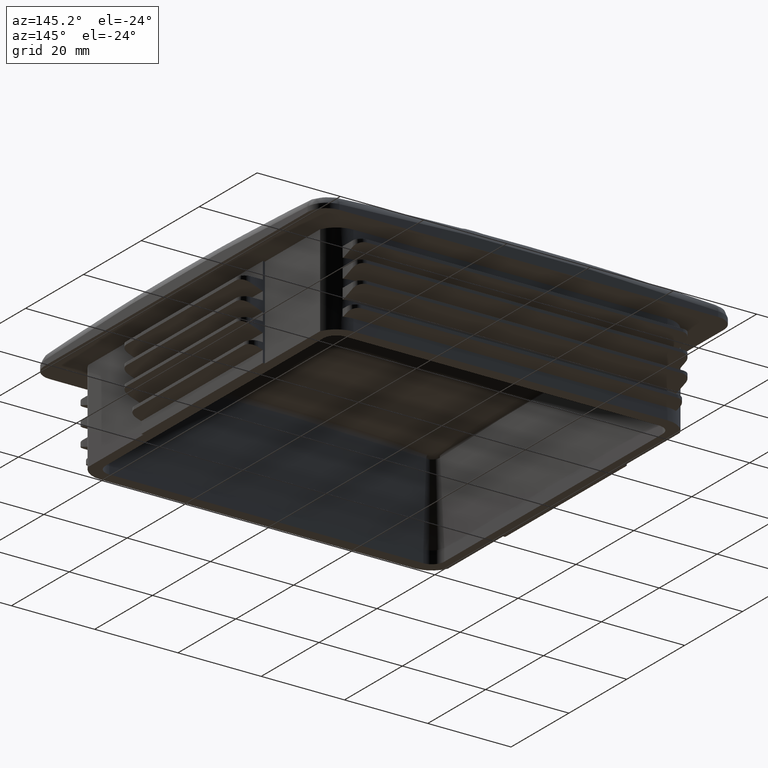
[diagram: clean part render]
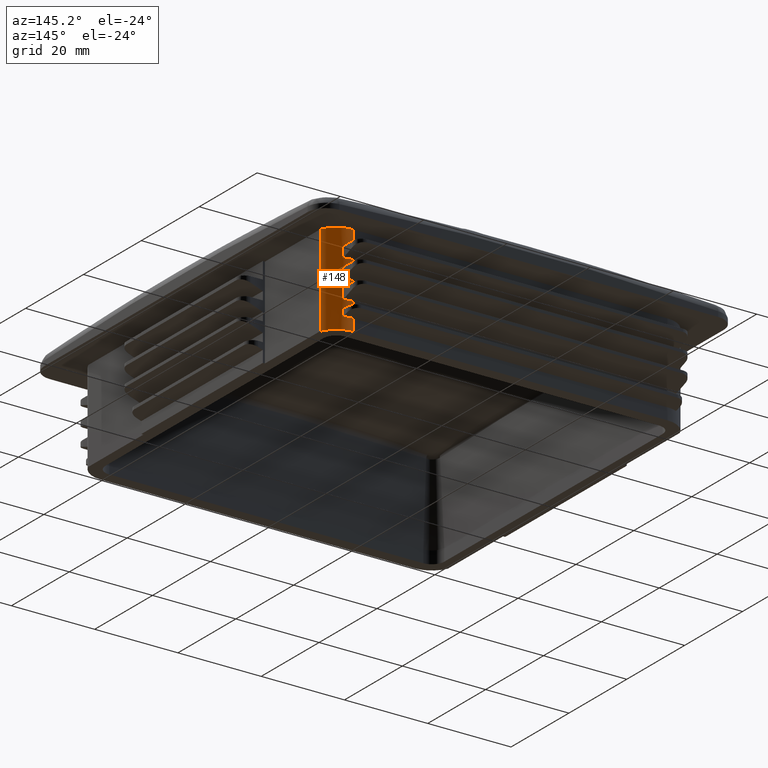
[diagram: same view with one face highlighted and labeled with its STEP entity id]
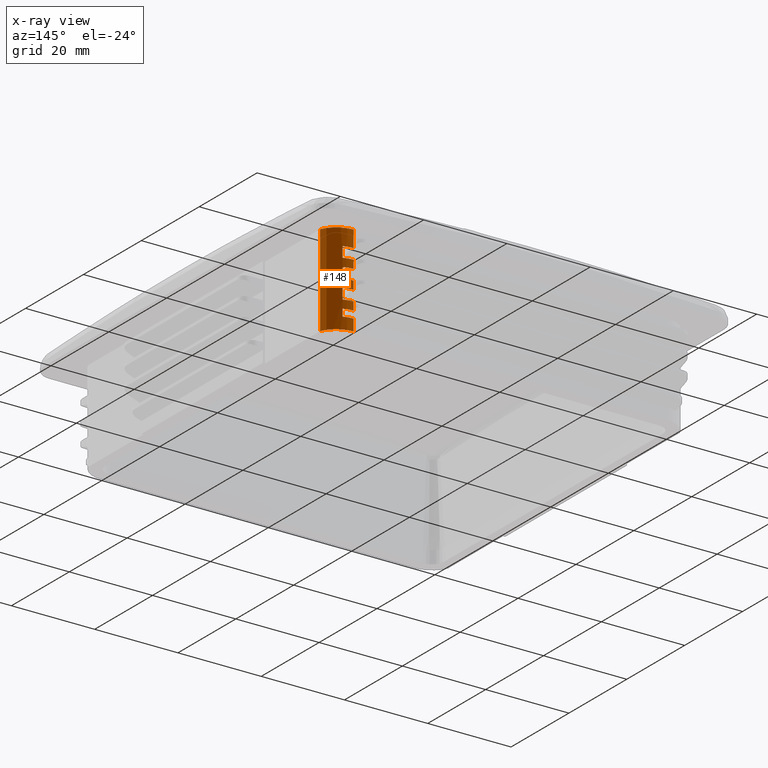
[diagram: x-ray of the same camera — body ghosted, the highlighted face saturated]
A machine part, auxiliary view. The second image highlights one B-rep face of the part: STEP entity #148.
The next image is the same camera in x-ray: the body ghosted, the highlighted face saturated — about 0% of this face is hidden behind the body in this view.
In plain terms, the highlighted cylindrical surface (edge-blend (fillet) strip) has radius 6 mm, axis along (0, 0, -1).
Its self-contained STEP definition (entity closure, byte-faithful):
#148 = ADVANCED_FACE( '', ( #476 ), #477, .T. );
#476 = FACE_OUTER_BOUND( '', #2818, .T. );
#477 = CYLINDRICAL_SURFACE( '', #2819, 6.00000000000001 );
#2818 = EDGE_LOOP( '', ( #3937, #3938, #3939, #3940, #3941, #3942, #3943, #3944, #3945, #3946, #3947, #3948, #3949, #3950, #3951, #3952, #3953, #3954, #3955, #3956 ) );
#2819 = AXIS2_PLACEMENT_3D( '', #3957, #3958, #3959 );
#3937 = ORIENTED_EDGE( '', *, *, #5563, .F. );
#3938 = ORIENTED_EDGE( '', *, *, #5655, .T. );
#3939 = ORIENTED_EDGE( '', *, *, #5417, .T. );
#3940 = ORIENTED_EDGE( '', *, *, #5654, .T. );
#3941 = ORIENTED_EDGE( '', *, *, #5656, .T. );
#3942 = ORIENTED_EDGE( '', *, *, #5657, .F. );
#3943 = ORIENTED_EDGE( '', *, *, #5658, .T. );
#3944 = ORIENTED_EDGE( '', *, *, #5651, .T. );
#3945 = ORIENTED_EDGE( '', *, *, #5659, .T. );
#3946 = ORIENTED_EDGE( '', *, *, #5660, .F. );
#3947 = ORIENTED_EDGE( '', *, *, #5661, .T. );
#3948 = ORIENTED_EDGE( '', *, *, #5646, .T. );
#3949 = ORIENTED_EDGE( '', *, *, #5662, .T. );
#3950 = ORIENTED_EDGE( '', *, *, #5663, .F. );
#3951 = ORIENTED_EDGE( '', *, *, #5664, .T. );
#3952 = ORIENTED_EDGE( '', *, *, #5512, .T. );
#3953 = ORIENTED_EDGE( '', *, *, #5665, .T. );
#3954 = ORIENTED_EDGE( '', *, *, #5666, .F. );
#3955 = ORIENTED_EDGE( '', *, *, #5667, .T. );
#3956 = ORIENTED_EDGE( '', *, *, #5648, .T. );
#3957 = CARTESIAN_POINT( '', ( 37.7000000000000, 37.7000000000000, -22.0000000000000 ) );
#3958 = DIRECTION( '', ( 0.000000000000000, 0.000000000000000, -1.00000000000000 ) );
#3959 = DIRECTION( '', ( 0.000000000000000, -1.00000000000000, 0.000000000000000 ) );
#5417 = EDGE_CURVE( '', #6080, #6078, #6081, .T. );
#5512 = EDGE_CURVE( '', #6249, #6247, #6250, .T. );
#5563 = EDGE_CURVE( '', #6334, #6336, #6337, .T. );
#5646 = EDGE_CURVE( '', #6473, #6471, #6474, .T. );
#5648 = EDGE_CURVE( '', #6476, #6336, #6477, .T. );
#5651 = EDGE_CURVE( '', #6481, #6479, #6482, .T. );
#5654 = EDGE_CURVE( '', #6078, #6484, #6486, .T. );
#5655 = EDGE_CURVE( '', #6334, #6080, #6487, .T. );
#5656 = EDGE_CURVE( '', #6484, #6488, #6489, .F. );
#5657 = EDGE_CURVE( '', #6490, #6488, #6491, .F. );
#5658 = EDGE_CURVE( '', #6490, #6481, #6492, .F. );
#5659 = EDGE_CURVE( '', #6479, #6493, #6494, .F. );
#5660 = EDGE_CURVE( '', #6495, #6493, #6496, .F. );
#5661 = EDGE_CURVE( '', #6495, #6473, #6497, .F. );
#5662 = EDGE_CURVE( '', #6471, #6498, #6499, .F. );
#5663 = EDGE_CURVE( '', #6500, #6498, #6501, .F. );
#5664 = EDGE_CURVE( '', #6500, #6249, #6502, .F. );
#5665 = EDGE_CURVE( '', #6247, #6503, #6504, .F. );
#5666 = EDGE_CURVE( '', #6505, #6503, #6506, .F. );
#5667 = EDGE_CURVE( '', #6505, #6476, #6507, .F. );
#6078 = VERTEX_POINT( '', #7154 );
#6080 = VERTEX_POINT( '', #7157 );
#6081 = CIRCLE( '', #7158, 6.00000000000001 );
#6247 = VERTEX_POINT( '', #7950 );
#6249 = VERTEX_POINT( '', #7953 );
#6250 = LINE( '', #7954, #7955 );
#6334 = VERTEX_POINT( '', #8570 );
#6336 = VERTEX_POINT( '', #8573 );
#6337 = CIRCLE( '', #8574, 6.00000000000001 );
#6471 = VERTEX_POINT( '', #9196 );
#6473 = VERTEX_POINT( '', #9199 );
#6474 = LINE( '', #9200, #9201 );
#6476 = VERTEX_POINT( '', #9204 );
#6477 = LINE( '', #9205, #9206 );
#6479 = VERTEX_POINT( '', #9209 );
#6481 = VERTEX_POINT( '', #9212 );
#6482 = LINE( '', #9213, #9214 );
#6484 = VERTEX_POINT( '', #9217 );
#6486 = LINE( '', #9220, #9221 );
#6487 = LINE( '', #9222, #9223 );
#6488 = VERTEX_POINT( '', #9224 );
#6489 = CIRCLE( '', #9225, 6.00000000000001 );
#6490 = VERTEX_POINT( '', #9226 );
#6491 = LINE( '', #9227, #9228 );
#6492 = CIRCLE( '', #9229, 6.00000000000001 );
#6493 = VERTEX_POINT( '', #9230 );
#6494 = CIRCLE( '', #9231, 6.00000000000001 );
#6495 = VERTEX_POINT( '', #9232 );
#6496 = LINE( '', #9233, #9234 );
#6497 = CIRCLE( '', #9235, 6.00000000000001 );
#6498 = VERTEX_POINT( '', #9236 );
#6499 = CIRCLE( '', #9237, 6.00000000000001 );
#6500 = VERTEX_POINT( '', #9238 );
#6501 = LINE( '', #9239, #9240 );
#6502 = CIRCLE( '', #9241, 6.00000000000001 );
#6503 = VERTEX_POINT( '', #9242 );
#6504 = CIRCLE( '', #9243, 6.00000000000001 );
#6505 = VERTEX_POINT( '', #9244 );
#6506 = LINE( '', #9245, #9246 );
#6507 = CIRCLE( '', #9247, 6.00000000000001 );
#7154 = CARTESIAN_POINT( '', ( 37.7000000000000, 43.7000000000000, -22.0000000000000 ) );
#7157 = CARTESIAN_POINT( '', ( 43.2000000000000, 40.0979157616564, -22.0000000000000 ) );
#7158 = AXIS2_PLACEMENT_3D( '', #10591, #10592, #10593 );
#7950 = CARTESIAN_POINT( '', ( 37.7000000000000, 43.7000000000000, -6.50000000000001 ) );
#7953 = CARTESIAN_POINT( '', ( 37.7000000000000, 43.7000000000000, -8.50000000000000 ) );
#7954 = CARTESIAN_POINT( '', ( 37.7000000000000, 43.7000000000000, -22.0000000000000 ) );
#7955 = VECTOR( '', #10713, 1000.00000000000 );
#8570 = CARTESIAN_POINT( '', ( 43.2000000000000, 40.0979157616564, 0.000000000000000 ) );
#8573 = CARTESIAN_POINT( '', ( 37.7000000000000, 43.7000000000000, 0.000000000000000 ) );
#8574 = AXIS2_PLACEMENT_3D( '', #10776, #10777, #10778 );
#9196 = CARTESIAN_POINT( '', ( 37.7000000000000, 43.7000000000000, -11.0000000000000 ) );
#9199 = CARTESIAN_POINT( '', ( 37.7000000000000, 43.7000000000000, -13.0000000000000 ) );
#9200 = CARTESIAN_POINT( '', ( 37.7000000000000, 43.7000000000000, -22.0000000000000 ) );
#9201 = VECTOR( '', #10817, 1000.00000000000 );
#9204 = CARTESIAN_POINT( '', ( 37.7000000000000, 43.7000000000000, -4.00000000000000 ) );
#9205 = CARTESIAN_POINT( '', ( 37.7000000000000, 43.7000000000000, -22.0000000000000 ) );
#9206 = VECTOR( '', #10819, 1000.00000000000 );
#9209 = CARTESIAN_POINT( '', ( 37.7000000000000, 43.7000000000000, -15.5000000000000 ) );
#9212 = CARTESIAN_POINT( '', ( 37.7000000000000, 43.7000000000000, -17.5000000000000 ) );
#9213 = CARTESIAN_POINT( '', ( 37.7000000000000, 43.7000000000000, -22.0000000000000 ) );
#9214 = VECTOR( '', #10822, 1000.00000000000 );
#9217 = CARTESIAN_POINT( '', ( 37.7000000000000, 43.7000000000001, -19.2000000000000 ) );
#9220 = CARTESIAN_POINT( '', ( 37.7000000000000, 43.7000000000000, -22.0000000000000 ) );
#9221 = VECTOR( '', #10825, 1000.00000000000 );
#9222 = CARTESIAN_POINT( '', ( 43.2000000000000, 40.0979157616564, 0.000000000000000 ) );
#9223 = VECTOR( '', #10826, 1000.00000000000 );
#9224 = CARTESIAN_POINT( '', ( 40.0000000000000, 43.2416604009990, -19.2000000000000 ) );
#9225 = AXIS2_PLACEMENT_3D( '', #10827, #10828, #10829 );
#9226 = CARTESIAN_POINT( '', ( 40.0000000000000, 43.2416604009990, -17.5000000000000 ) );
#9227 = CARTESIAN_POINT( '', ( 40.0000000000000, 43.2416604009990, -22.0000000000000 ) );
#9228 = VECTOR( '', #10830, 1000.00000000000 );
#9229 = AXIS2_PLACEMENT_3D( '', #10831, #10832, #10833 );
#9230 = CARTESIAN_POINT( '', ( 40.0000000000000, 43.2416604009990, -15.5000000000000 ) );
#9231 = AXIS2_PLACEMENT_3D( '', #10834, #10835, #10836 );
#9232 = CARTESIAN_POINT( '', ( 40.0000000000000, 43.2416604009990, -13.0000000000000 ) );
#9233 = CARTESIAN_POINT( '', ( 40.0000000000000, 43.2416604009990, -22.0000000000000 ) );
#9234 = VECTOR( '', #10837, 1000.00000000000 );
#9235 = AXIS2_PLACEMENT_3D( '', #10838, #10839, #10840 );
#9236 = CARTESIAN_POINT( '', ( 40.0000000000000, 43.2416604009990, -11.0000000000000 ) );
#9237 = AXIS2_PLACEMENT_3D( '', #10841, #10842, #10843 );
#9238 = CARTESIAN_POINT( '', ( 40.0000000000000, 43.2416604009990, -8.50000000000000 ) );
#9239 = CARTESIAN_POINT( '', ( 40.0000000000000, 43.2416604009990, -22.0000000000000 ) );
#9240 = VECTOR( '', #10844, 1000.00000000000 );
#9241 = AXIS2_PLACEMENT_3D( '', #10845, #10846, #10847 );
#9242 = CARTESIAN_POINT( '', ( 40.0000000000000, 43.2416604009990, -6.50000000000000 ) );
#9243 = AXIS2_PLACEMENT_3D( '', #10848, #10849, #10850 );
#9244 = CARTESIAN_POINT( '', ( 40.0000000000000, 43.2416604009990, -4.00000000000000 ) );
#9245 = CARTESIAN_POINT( '', ( 40.0000000000000, 43.2416604009990, -22.0000000000000 ) );
#9246 = VECTOR( '', #10851, 1000.00000000000 );
#9247 = AXIS2_PLACEMENT_3D( '', #10852, #10853, #10854 );
#10591 = CARTESIAN_POINT( '', ( 37.7000000000000, 37.7000000000000, -22.0000000000000 ) );
#10592 = DIRECTION( '', ( 0.000000000000000, 0.000000000000000, 1.00000000000000 ) );
#10593 = DIRECTION( '', ( 1.00000000000000, 0.000000000000000, 0.000000000000000 ) );
#10713 = DIRECTION( '', ( 0.000000000000000, 0.000000000000000, 1.00000000000000 ) );
#10776 = CARTESIAN_POINT( '', ( 37.7000000000000, 37.7000000000000, 0.000000000000000 ) );
#10777 = DIRECTION( '', ( 0.000000000000000, 0.000000000000000, 1.00000000000000 ) );
#10778 = DIRECTION( '', ( 1.00000000000000, 0.000000000000000, 0.000000000000000 ) );
#10817 = DIRECTION( '', ( 0.000000000000000, 0.000000000000000, 1.00000000000000 ) );
#10819 = DIRECTION( '', ( 0.000000000000000, 0.000000000000000, 1.00000000000000 ) );
#10822 = DIRECTION( '', ( 0.000000000000000, 0.000000000000000, 1.00000000000000 ) );
#10825 = DIRECTION( '', ( 0.000000000000000, 0.000000000000000, 1.00000000000000 ) );
#10826 = DIRECTION( '', ( 0.000000000000000, 0.000000000000000, -1.00000000000000 ) );
#10827 = CARTESIAN_POINT( '', ( 37.7000000000000, 37.7000000000000, -19.2000000000000 ) );
#10828 = DIRECTION( '', ( 2.55172454101166E-031, 6.12303176911189E-017, 1.00000000000000 ) );
#10829 = DIRECTION( '', ( 0.000000000000000, -1.00000000000000, 6.12303176911189E-017 ) );
#10830 = DIRECTION( '', ( 0.000000000000000, 0.000000000000000, 1.00000000000000 ) );
#10831 = CARTESIAN_POINT( '', ( 37.7000000000000, 37.7000000000000, -17.5000000000000 ) );
#10832 = DIRECTION( '', ( -2.55172454101166E-031, -6.12303176911189E-017, -1.00000000000000 ) );
#10833 = DIRECTION( '', ( 0.000000000000000, 1.00000000000000, -6.12303176911189E-017 ) );
#10834 = CARTESIAN_POINT( '', ( 37.7000000000000, 37.7000000000000, -15.5000000000000 ) );
#10835 = DIRECTION( '', ( 2.55172454101166E-031, 6.12303176911189E-017, 1.00000000000000 ) );
#10836 = DIRECTION( '', ( 0.000000000000000, -1.00000000000000, 6.12303176911189E-017 ) );
#10837 = DIRECTION( '', ( 0.000000000000000, 0.000000000000000, 1.00000000000000 ) );
#10838 = CARTESIAN_POINT( '', ( 37.7000000000000, 37.7000000000000, -13.0000000000000 ) );
#10839 = DIRECTION( '', ( -2.55172454101166E-031, -6.12303176911189E-017, -1.00000000000000 ) );
#10840 = DIRECTION( '', ( 0.000000000000000, 1.00000000000000, -6.12303176911189E-017 ) );
#10841 = CARTESIAN_POINT( '', ( 37.7000000000000, 37.7000000000000, -11.0000000000000 ) );
#10842 = DIRECTION( '', ( 2.55172454101166E-031, 6.12303176911189E-017, 1.00000000000000 ) );
#10843 = DIRECTION( '', ( 0.000000000000000, -1.00000000000000, 6.12303176911189E-017 ) );
#10844 = DIRECTION( '', ( 0.000000000000000, 0.000000000000000, 1.00000000000000 ) );
#10845 = CARTESIAN_POINT( '', ( 37.7000000000000, 37.7000000000000, -8.50000000000000 ) );
#10846 = DIRECTION( '', ( -2.55172454101166E-031, -6.12303176911189E-017, -1.00000000000000 ) );
#10847 = DIRECTION( '', ( 0.000000000000000, 1.00000000000000, -6.12303176911189E-017 ) );
#10848 = CARTESIAN_POINT( '', ( 37.7000000000000, 37.7000000000000, -6.50000000000000 ) );
#10849 = DIRECTION( '', ( 2.55172454101166E-031, 6.12303176911189E-017, 1.00000000000000 ) );
#10850 = DIRECTION( '', ( 0.000000000000000, -1.00000000000000, 6.12303176911189E-017 ) );
#10851 = DIRECTION( '', ( 0.000000000000000, 0.000000000000000, 1.00000000000000 ) );
#10852 = CARTESIAN_POINT( '', ( 37.7000000000000, 37.7000000000000, -4.00000000000000 ) );
#10853 = DIRECTION( '', ( -2.55172454101166E-031, -6.12303176911189E-017, -1.00000000000000 ) );
#10854 = DIRECTION( '', ( 0.000000000000000, 1.00000000000000, -6.12303176911189E-017 ) );